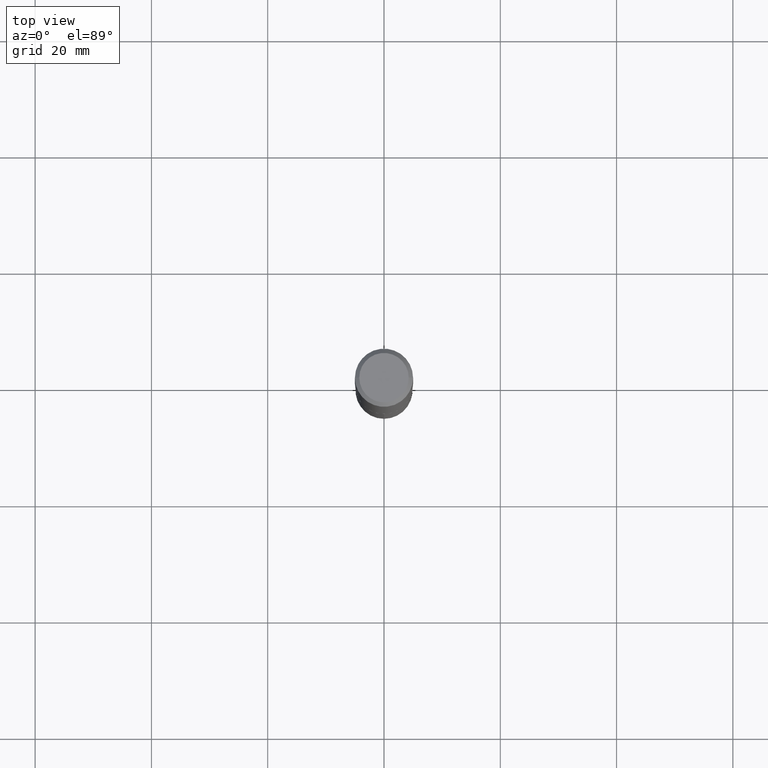
[diagram: clean part render]
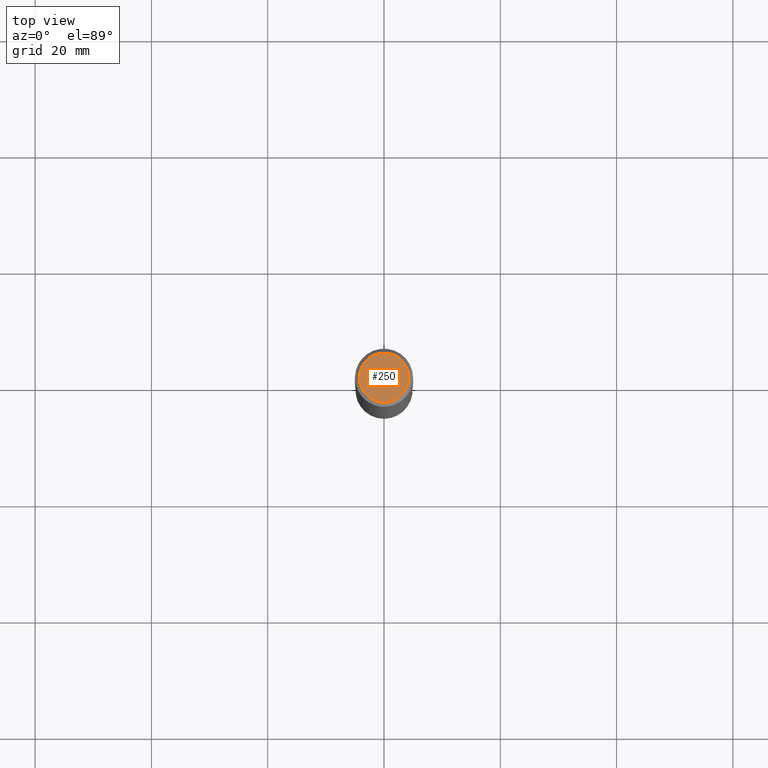
[diagram: same view with one face highlighted and labeled with its STEP entity id]
A machine part, top view. The second image highlights one B-rep face of the part: STEP entity #250.
In plain terms, the highlighted planar face has unit normal (0, -0, -1).
Its self-contained STEP definition (entity closure, byte-faithful):
#11 = DIRECTION ( 'NONE',  ( -2.445468806185136597E-29, 3.491481338843145583E-15, 1.000000000000000000 ) ) ;
#16 = VERTEX_POINT ( 'NONE', #230 ) ;
#25 = EDGE_CURVE ( 'NONE', #16, #200, #340, .T. ) ;
#39 = DIRECTION ( 'NONE',  ( 1.000000000000000000, -6.982962677686267499E-15, 4.876294436782262290E-29 ) ) ;
#46 = DIRECTION ( 'NONE',  ( 1.000000000000000000, -6.982962677686267499E-15, 4.876294436782262290E-29 ) ) ;
#48 = AXIS2_PLACEMENT_3D ( 'NONE', #367, #292, #39 ) ;
#106 = AXIS2_PLACEMENT_3D ( 'NONE', #165, #341, #288 ) ;
#118 = ORIENTED_EDGE ( 'NONE', *, *, #25, .T. ) ;
#165 = CARTESIAN_POINT ( 'NONE',  ( -5.008488096090108951E-47, 7.150793614331948590E-33, 2.048068690724054183E-18 ) ) ;
#166 = AXIS2_PLACEMENT_3D ( 'NONE', #247, #11, #46 ) ;
#179 = PLANE ( 'NONE',  #106 ) ;
#200 = VERTEX_POINT ( 'NONE', #272 ) ;
#230 = CARTESIAN_POINT ( 'NONE',  ( -0.1673224999999999851, 1.219954130253505263E-15, 4.096137381439757534E-18 ) ) ;
#240 = FACE_OUTER_BOUND ( 'NONE', #336, .T. ) ;
#247 = CARTESIAN_POINT ( 'NONE',  ( -1.001697619218021790E-46, 1.430158722866389718E-32, 4.096137381448108366E-18 ) ) ;
#250 = ADVANCED_FACE ( 'NONE', ( #240 ), #179, .F. ) ;
#272 = CARTESIAN_POINT ( 'NONE',  ( 0.1673224999999999851, -1.300749711163072397E-15, 4.096137381456741925E-18 ) ) ;
#283 = CIRCLE ( 'NONE', #166, 0.1673224999999999851 ) ;
#288 = DIRECTION ( 'NONE',  ( -1.000000000000000000, 6.982962677686265922E-15, -4.876176775795935793E-29 ) ) ;
#292 = DIRECTION ( 'NONE',  ( -2.445468806185136597E-29, 3.491481338843145583E-15, 1.000000000000000000 ) ) ;
#336 = EDGE_LOOP ( 'NONE', ( #118, #371 ) ) ;
#340 = CIRCLE ( 'NONE', #48, 0.1673224999999999851 ) ;
#341 = DIRECTION ( 'NONE',  ( 2.438088387897960049E-29, -3.491481338843145188E-15, -1.000000000000000000 ) ) ;
#367 = CARTESIAN_POINT ( 'NONE',  ( -1.001697619218021790E-46, 1.430158722866389718E-32, 4.096137381448108366E-18 ) ) ;
#371 = ORIENTED_EDGE ( 'NONE', *, *, #392, .T. ) ;
#392 = EDGE_CURVE ( 'NONE', #200, #16, #283, .T. ) ;